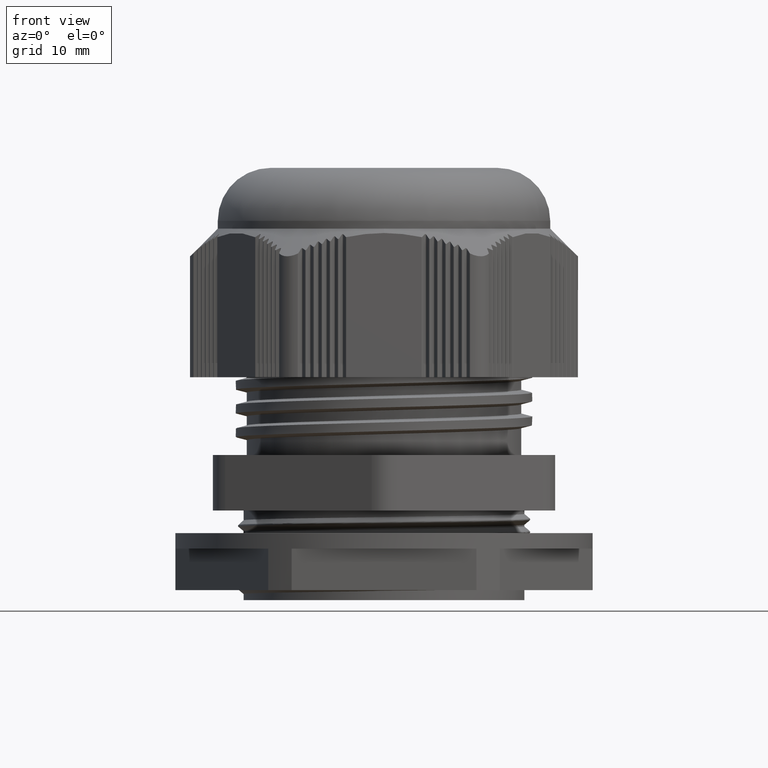
[diagram: clean part render]
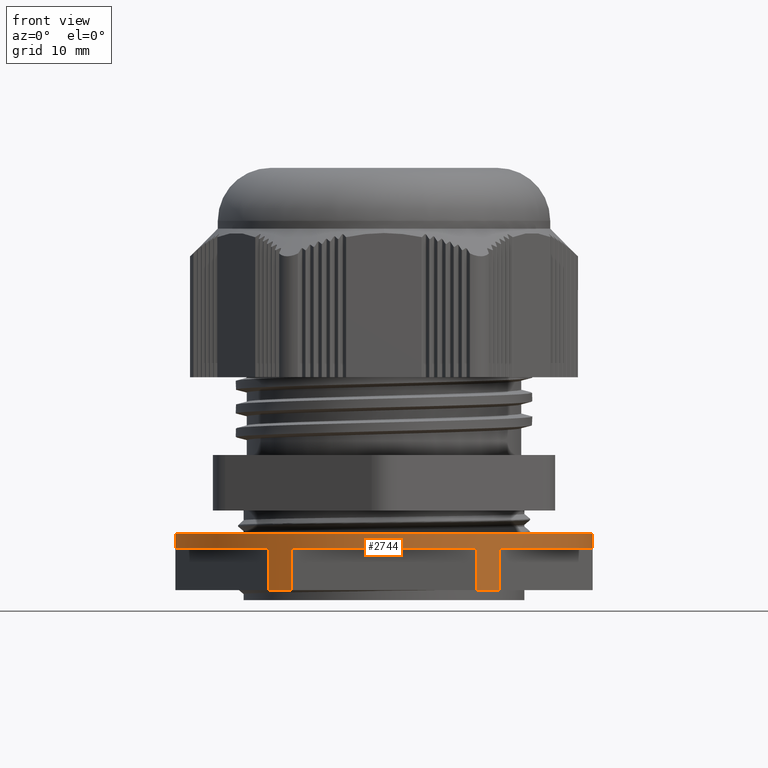
[diagram: same view with one face highlighted and labeled with its STEP entity id]
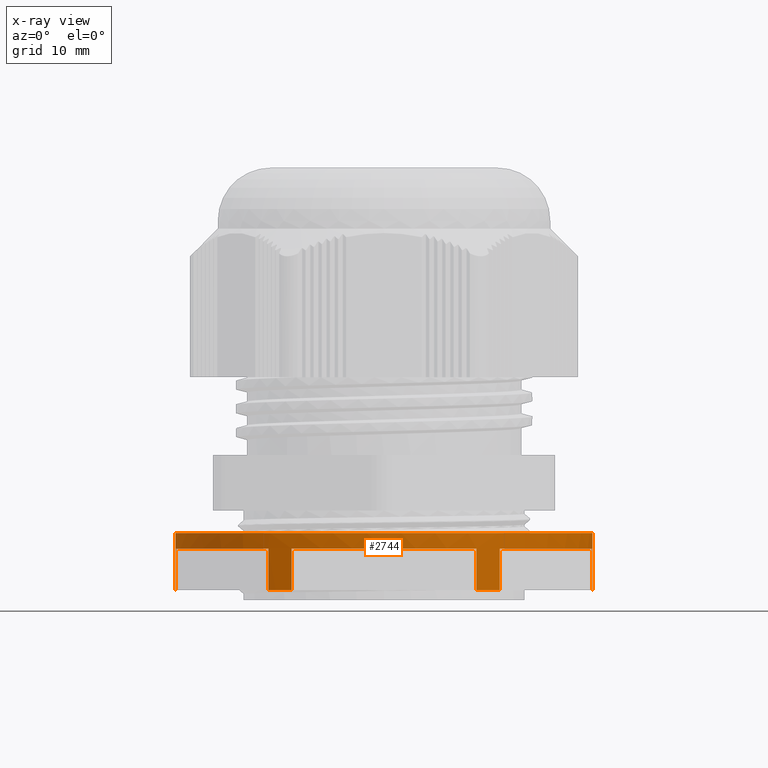
[diagram: x-ray of the same camera — body ghosted, the highlighted face saturated]
A machine part, front view. The second image highlights one B-rep face of the part: STEP entity #2744.
The next image is the same camera in x-ray: the body ghosted, the highlighted face saturated — about 0% of this face is hidden behind the body in this view.
In plain terms, the highlighted cylindrical surface (partial cylindrical patch) has radius 25.6 mm, axis along (0, 0, 1).
Its self-contained STEP definition (entity closure, byte-faithful):
#1235 = EDGE_CURVE ( 'NONE', #1702, #1798, #4163, .T. ) ;
#1238 = EDGE_CURVE ( 'NONE', #1594, #1608, #10095, .T. ) ;
#1245 = EDGE_CURVE ( 'NONE', #1648, #1659, #10067, .T. ) ;
#1247 = EDGE_CURVE ( 'NONE', #1608, #1677, #4161, .T. ) ;
#1251 = EDGE_CURVE ( 'NONE', #1636, #1702, #10121, .T. ) ;
#1263 = EDGE_CURVE ( 'NONE', #1711, #1648, #23046, .T. ) ;
#1264 = EDGE_CURVE ( 'NONE', #1686, #1711, #10107, .T. ) ;
#1286 = EDGE_CURVE ( 'NONE', #1575, #1690, #10574, .T. ) ;
#1296 = EDGE_CURVE ( 'NONE', #1575, #1642, #10275, .T. ) ;
#1299 = EDGE_CURVE ( 'NONE', #1594, #1759, #10581, .T. ) ;
#1313 = EDGE_CURVE ( 'NONE', #1636, #1738, #10583, .T. ) ;
#1314 = EDGE_CURVE ( 'NONE', #1738, #1677, #10308, .T. ) ;
#1323 = EDGE_CURVE ( 'NONE', #1759, #1596, #10385, .T. ) ;
#1331 = EDGE_CURVE ( 'NONE', #1686, #1596, #10564, .T. ) ;
#1333 = EDGE_CURVE ( 'NONE', #1659, #1642, #10667, .T. ) ;
#1349 = EDGE_CURVE ( 'NONE', #1690, #1798, #10456, .T. ) ;
#1575 = VERTEX_POINT ( 'NONE', #11569 ) ;
#1594 = VERTEX_POINT ( 'NONE', #11598 ) ;
#1596 = VERTEX_POINT ( 'NONE', #11619 ) ;
#1608 = VERTEX_POINT ( 'NONE', #11622 ) ;
#1636 = VERTEX_POINT ( 'NONE', #11665 ) ;
#1642 = VERTEX_POINT ( 'NONE', #11656 ) ;
#1648 = VERTEX_POINT ( 'NONE', #11706 ) ;
#1659 = VERTEX_POINT ( 'NONE', #11712 ) ;
#1677 = VERTEX_POINT ( 'NONE', #11754 ) ;
#1686 = VERTEX_POINT ( 'NONE', #11728 ) ;
#1690 = VERTEX_POINT ( 'NONE', #11769 ) ;
#1702 = VERTEX_POINT ( 'NONE', #11779 ) ;
#1711 = VERTEX_POINT ( 'NONE', #11792 ) ;
#1738 = VERTEX_POINT ( 'NONE', #11843 ) ;
#1759 = VERTEX_POINT ( 'NONE', #11900 ) ;
#1798 = VERTEX_POINT ( 'NONE', #12001 ) ;
#2744 = ADVANCED_FACE ( 'NONE', ( #16317 ), #16334, .T. ) ;
#3369 = EDGE_LOOP ( 'NONE', ( #21356, #21396, #21388, #21379, #21380, #21391, #21378, #21405, #21367, #21426, #21382, #21403, #21410, #21414, #21421, #21365 ) ) ;
#4151 = AXIS2_PLACEMENT_3D ( 'NONE', #10111, #10118, #10105 ) ;
#4158 = VECTOR ( 'NONE', #10076, 1000.000000000000000 ) ;
#4161 = CIRCLE ( 'NONE', #4151, 25.59999999999995500 ) ;
#4162 = AXIS2_PLACEMENT_3D ( 'NONE', #10059, #10062, #10092 ) ;
#4163 = CIRCLE ( 'NONE', #4162, 25.59999999999995500 ) ;
#4165 = VECTOR ( 'NONE', #10085, 1000.000000000000000 ) ;
#9464 = CARTESIAN_POINT ( 'NONE',  ( -645.7352685972825800, 329.3475476619814800, 1.945886070432598200 ) ) ;
#10001 = DIRECTION ( 'NONE',  ( 0.0000000000000000000, 0.0000000000000000000, 1.000000000000000000 ) ) ;
#10059 = CARTESIAN_POINT ( 'NONE',  ( -671.2819160884045000, 330.9994562443066000, 6.695886070432576900 ) ) ;
#10062 = DIRECTION ( 'NONE',  ( 0.0000000000000000000, 0.0000000000000000000, 1.000000000000000000 ) ) ;
#10066 = CARTESIAN_POINT ( 'NONE',  ( -696.8819160884045200, 330.9994562443066000, 1.945886070432598200 ) ) ;
#10067 = LINE ( 'NONE', #10066, #4158 ) ;
#10076 = DIRECTION ( 'NONE',  ( 0.0000000000000000000, 0.0000000000000000000, 1.000000000000000000 ) ) ;
#10080 = CARTESIAN_POINT ( 'NONE',  ( -682.6246450369424100, 308.0494562443065500, 1.945886070432598200 ) ) ;
#10085 = DIRECTION ( 'NONE',  ( 0.0000000000000000000, 0.0000000000000000000, 1.000000000000000000 ) ) ;
#10092 = DIRECTION ( 'NONE',  ( 1.000000000000000000, 0.0000000000000000000, 0.0000000000000000000 ) ) ;
#10095 = LINE ( 'NONE', #10080, #4165 ) ;
#10105 = DIRECTION ( 'NONE',  ( 1.000000000000000000, 0.0000000000000000000, 0.0000000000000000000 ) ) ;
#10107 = LINE ( 'NONE', #10150, #23044 ) ;
#10111 = CARTESIAN_POINT ( 'NONE',  ( -671.2819160884045000, 330.9994562443066000, 6.695886070432576900 ) ) ;
#10118 = DIRECTION ( 'NONE',  ( 0.0000000000000000000, 0.0000000000000000000, 1.000000000000000000 ) ) ;
#10121 = LINE ( 'NONE', #10134, #23038 ) ;
#10126 = DIRECTION ( 'NONE',  ( 0.0000000000000000000, 0.0000000000000000000, 1.000000000000000000 ) ) ;
#10134 = CARTESIAN_POINT ( 'NONE',  ( -657.0779975458204900, 309.7013648266316700, 1.945886070432598200 ) ) ;
#10150 = CARTESIAN_POINT ( 'NONE',  ( -696.8285635795264200, 329.3475476619820500, 1.945886070432598200 ) ) ;
#10151 = DIRECTION ( 'NONE',  ( -1.000000000000000000, 0.0000000000000000000, 0.0000000000000000000 ) ) ;
#10171 = DIRECTION ( 'NONE',  ( -0.0000000000000000000, -0.0000000000000000000, -1.000000000000000000 ) ) ;
#10175 = DIRECTION ( 'NONE',  ( 0.0000000000000000000, 0.0000000000000000000, -1.000000000000000000 ) ) ;
#10184 = CARTESIAN_POINT ( 'NONE',  ( -671.2819160884045000, 330.9994562443066000, 1.595886070432598100 ) ) ;
#10209 = CARTESIAN_POINT ( 'NONE',  ( -671.2819160884045000, 330.9994562443066000, 1.595886070432598100 ) ) ;
#10210 = DIRECTION ( 'NONE',  ( 0.0000000000000000000, 0.0000000000000000000, -1.000000000000000000 ) ) ;
#10211 = DIRECTION ( 'NONE',  ( -1.000000000000000000, 0.0000000000000000000, 0.0000000000000000000 ) ) ;
#10242 = CARTESIAN_POINT ( 'NONE',  ( -645.6819160884043600, 330.9994562443066000, 1.945886070432598200 ) ) ;
#10247 = DIRECTION ( 'NONE',  ( 0.0000000000000000000, 0.0000000000000000000, 1.000000000000000000 ) ) ;
#10257 = CARTESIAN_POINT ( 'NONE',  ( -671.2819160884045000, 330.9994562443066000, 1.595886070432598100 ) ) ;
#10258 = DIRECTION ( 'NONE',  ( -1.000000000000000000, 0.0000000000000000000, 0.0000000000000000000 ) ) ;
#10266 = DIRECTION ( 'NONE',  ( 0.0000000000000000000, 0.0000000000000000000, -1.000000000000000000 ) ) ;
#10275 = LINE ( 'NONE', #10242, #10594 ) ;
#10294 = DIRECTION ( 'NONE',  ( 0.0000000000000000000, 0.0000000000000000000, 1.000000000000000000 ) ) ;
#10298 = CARTESIAN_POINT ( 'NONE',  ( -671.2819160884045000, 330.9994562443066000, 1.595886070432598100 ) ) ;
#10300 = DIRECTION ( 'NONE',  ( 0.0000000000000000000, 0.0000000000000000000, -1.000000000000000000 ) ) ;
#10303 = DIRECTION ( 'NONE',  ( -1.000000000000000000, 0.0000000000000000000, 0.0000000000000000000 ) ) ;
#10308 = LINE ( 'NONE', #10309, #10550 ) ;
#10309 = CARTESIAN_POINT ( 'NONE',  ( -659.9391871398665900, 308.0494562443065500, 1.945886070432598200 ) ) ;
#10369 = CARTESIAN_POINT ( 'NONE',  ( -685.4858346309880500, 309.7013648266313300, 1.945886070432598200 ) ) ;
#10370 = DIRECTION ( 'NONE',  ( 0.0000000000000000000, 0.0000000000000000000, 1.000000000000000000 ) ) ;
#10385 = LINE ( 'NONE', #10369, #10596 ) ;
#10397 = DIRECTION ( 'NONE',  ( 0.0000000000000000000, 0.0000000000000000000, 1.000000000000000000 ) ) ;
#10399 = DIRECTION ( 'NONE',  ( 1.000000000000000000, 0.0000000000000000000, 0.0000000000000000000 ) ) ;
#10408 = CARTESIAN_POINT ( 'NONE',  ( -671.2819160884045000, 330.9994562443066000, 6.695886070432576900 ) ) ;
#10409 = DIRECTION ( 'NONE',  ( 1.000000000000000000, 0.0000000000000000000, 0.0000000000000000000 ) ) ;
#10427 = CARTESIAN_POINT ( 'NONE',  ( -671.2819160884045000, 330.9994562443066000, 8.595886070432577200 ) ) ;
#10428 = DIRECTION ( 'NONE',  ( 0.0000000000000000000, 0.0000000000000000000, 1.000000000000000000 ) ) ;
#10456 = LINE ( 'NONE', #9464, #10668 ) ;
#10547 = AXIS2_PLACEMENT_3D ( 'NONE', #10209, #10210, #10211 ) ;
#10550 = VECTOR ( 'NONE', #10294, 1000.000000000000000 ) ;
#10564 = CIRCLE ( 'NONE', #10600, 25.59999999999995500 ) ;
#10574 = CIRCLE ( 'NONE', #10547, 25.60000000000006500 ) ;
#10578 = AXIS2_PLACEMENT_3D ( 'NONE', #10298, #10300, #10303 ) ;
#10579 = AXIS2_PLACEMENT_3D ( 'NONE', #10257, #10266, #10258 ) ;
#10581 = CIRCLE ( 'NONE', #10579, 25.60000000000006500 ) ;
#10583 = CIRCLE ( 'NONE', #10578, 25.60000000000006500 ) ;
#10594 = VECTOR ( 'NONE', #10247, 1000.000000000000000 ) ;
#10596 = VECTOR ( 'NONE', #10370, 1000.000000000000000 ) ;
#10600 = AXIS2_PLACEMENT_3D ( 'NONE', #10408, #10397, #10399 ) ;
#10645 = AXIS2_PLACEMENT_3D ( 'NONE', #10427, #10428, #10409 ) ;
#10667 = CIRCLE ( 'NONE', #10645, 25.59999999999995500 ) ;
#10668 = VECTOR ( 'NONE', #10001, 1000.000000000000000 ) ;
#11569 = CARTESIAN_POINT ( 'NONE',  ( -645.6819160884043600, 330.9994562443066000, 1.595886070432598100 ) ) ;
#11598 = CARTESIAN_POINT ( 'NONE',  ( -682.6246450369424100, 308.0494562443065500, 1.595886070432598100 ) ) ;
#11619 = CARTESIAN_POINT ( 'NONE',  ( -685.4858346309880500, 309.7013648266313300, 6.695886070432576900 ) ) ;
#11622 = CARTESIAN_POINT ( 'NONE',  ( -682.6246450369424100, 308.0494562443065500, 6.695886070432576900 ) ) ;
#11656 = CARTESIAN_POINT ( 'NONE',  ( -645.6819160884044800, 330.9994562443066000, 8.595886070432577200 ) ) ;
#11665 = CARTESIAN_POINT ( 'NONE',  ( -657.0779975458203800, 309.7013648266316200, 1.595886070432598100 ) ) ;
#11706 = CARTESIAN_POINT ( 'NONE',  ( -696.8819160884045200, 330.9994562443066000, 1.595886070432598100 ) ) ;
#11712 = CARTESIAN_POINT ( 'NONE',  ( -696.8819160884044100, 330.9994562443066000, 8.595886070432577200 ) ) ;
#11728 = CARTESIAN_POINT ( 'NONE',  ( -696.8285635795264200, 329.3475476619820500, 6.695886070432576900 ) ) ;
#11754 = CARTESIAN_POINT ( 'NONE',  ( -659.9391871398665900, 308.0494562443065500, 6.695886070432576900 ) ) ;
#11769 = CARTESIAN_POINT ( 'NONE',  ( -645.7352685972827000, 329.3475476619817600, 1.595886070432598100 ) ) ;
#11779 = CARTESIAN_POINT ( 'NONE',  ( -657.0779975458204900, 309.7013648266316700, 6.695886070432576900 ) ) ;
#11792 = CARTESIAN_POINT ( 'NONE',  ( -696.8285635795264200, 329.3475476619820500, 1.595886070432598100 ) ) ;
#11843 = CARTESIAN_POINT ( 'NONE',  ( -659.9391871398665900, 308.0494562443065500, 1.595886070432598100 ) ) ;
#11900 = CARTESIAN_POINT ( 'NONE',  ( -685.4858346309880500, 309.7013648266313300, 1.595886070432598100 ) ) ;
#12001 = CARTESIAN_POINT ( 'NONE',  ( -645.7352685972825800, 329.3475476619814800, 6.695886070432576900 ) ) ;
#16227 = AXIS2_PLACEMENT_3D ( 'NONE', #16324, #16336, #16338 ) ;
#16317 = FACE_OUTER_BOUND ( 'NONE', #3369, .T. ) ;
#16324 = CARTESIAN_POINT ( 'NONE',  ( -671.2819160884045000, 330.9994562443066000, 1.945886070432598200 ) ) ;
#16334 = CYLINDRICAL_SURFACE ( 'NONE', #16227, 25.60000000000006500 ) ;
#16336 = DIRECTION ( 'NONE',  ( 0.0000000000000000000, 0.0000000000000000000, 1.000000000000000000 ) ) ;
#16338 = DIRECTION ( 'NONE',  ( 1.000000000000000000, 0.0000000000000000000, 0.0000000000000000000 ) ) ;
#21356 = ORIENTED_EDGE ( 'NONE', *, *, #1245, .F. ) ;
#21365 = ORIENTED_EDGE ( 'NONE', *, *, #1333, .F. ) ;
#21367 = ORIENTED_EDGE ( 'NONE', *, *, #1314, .F. ) ;
#21378 = ORIENTED_EDGE ( 'NONE', *, *, #1238, .T. ) ;
#21379 = ORIENTED_EDGE ( 'NONE', *, *, #1331, .T. ) ;
#21380 = ORIENTED_EDGE ( 'NONE', *, *, #1323, .F. ) ;
#21382 = ORIENTED_EDGE ( 'NONE', *, *, #1251, .T. ) ;
#21388 = ORIENTED_EDGE ( 'NONE', *, *, #1264, .F. ) ;
#21391 = ORIENTED_EDGE ( 'NONE', *, *, #1299, .F. ) ;
#21396 = ORIENTED_EDGE ( 'NONE', *, *, #1263, .F. ) ;
#21403 = ORIENTED_EDGE ( 'NONE', *, *, #1235, .T. ) ;
#21405 = ORIENTED_EDGE ( 'NONE', *, *, #1247, .T. ) ;
#21410 = ORIENTED_EDGE ( 'NONE', *, *, #1349, .F. ) ;
#21414 = ORIENTED_EDGE ( 'NONE', *, *, #1286, .F. ) ;
#21421 = ORIENTED_EDGE ( 'NONE', *, *, #1296, .T. ) ;
#21426 = ORIENTED_EDGE ( 'NONE', *, *, #1313, .F. ) ;
#23038 = VECTOR ( 'NONE', #10126, 1000.000000000000000 ) ;
#23040 = AXIS2_PLACEMENT_3D ( 'NONE', #10184, #10175, #10151 ) ;
#23044 = VECTOR ( 'NONE', #10171, 1000.000000000000000 ) ;
#23046 = CIRCLE ( 'NONE', #23040, 25.60000000000006500 ) ;